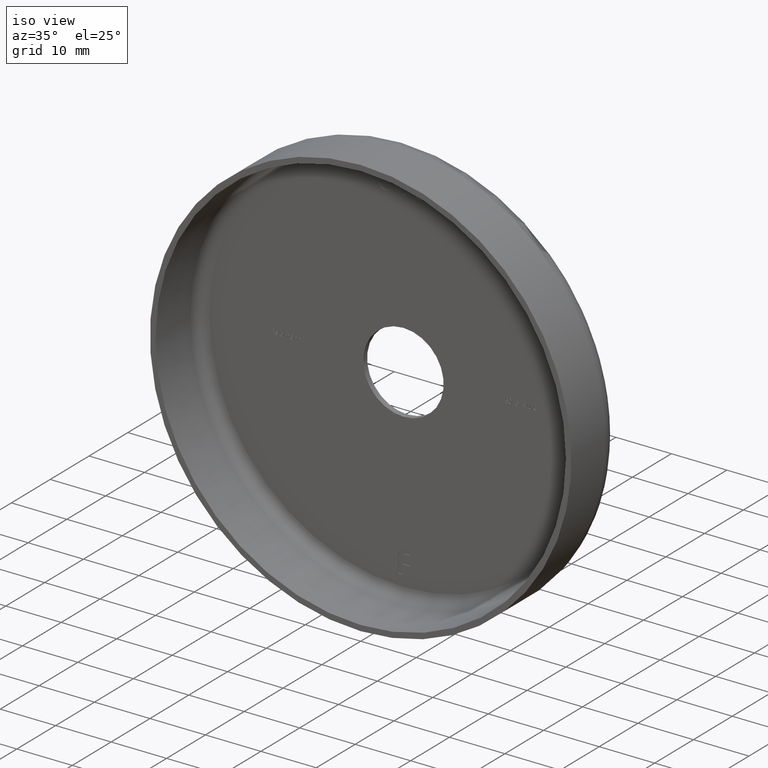
[diagram: clean part render]
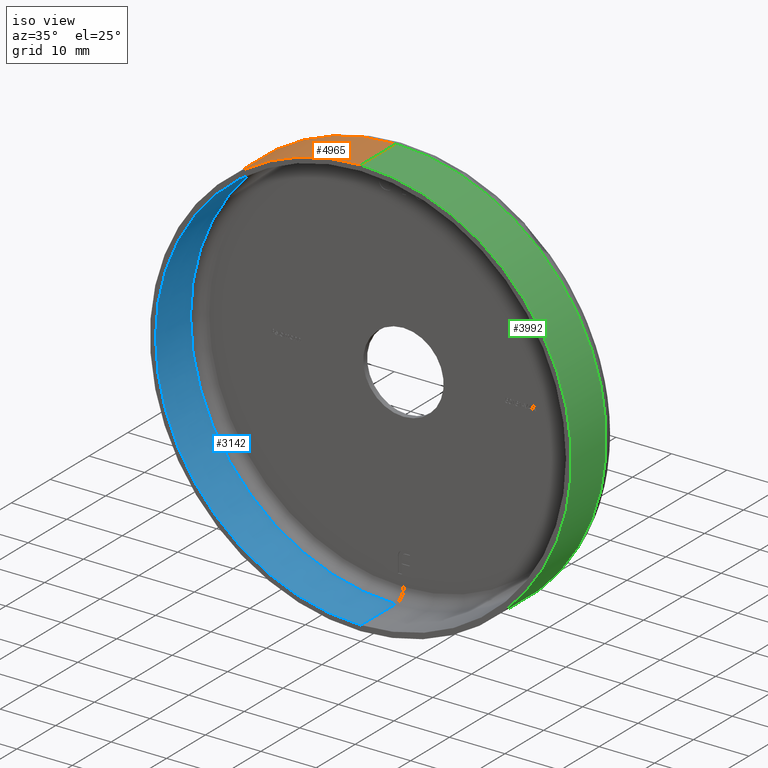
[diagram: same view with three faces highlighted in distinct colors, each labeled with its STEP entity id]
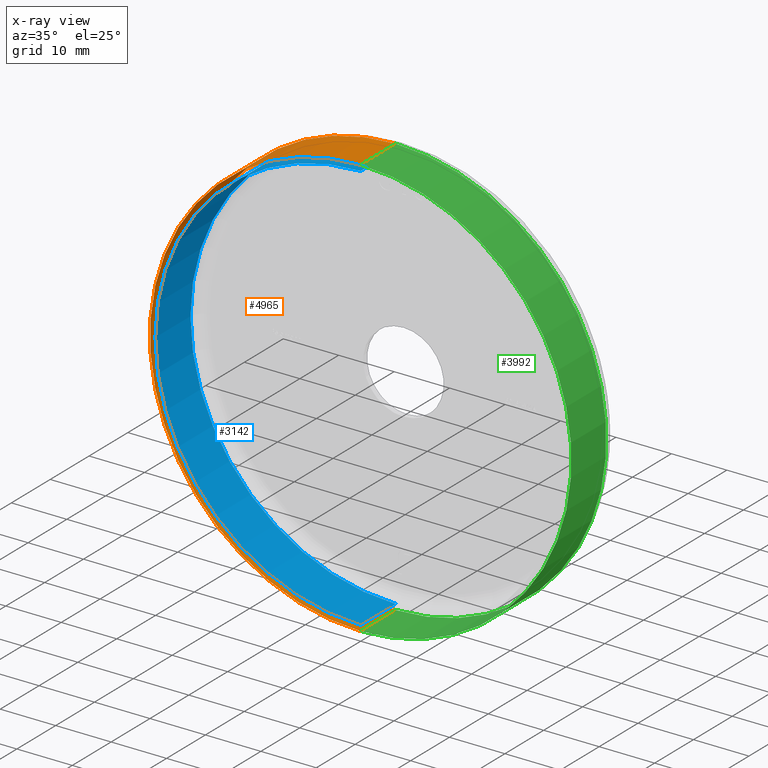
[diagram: x-ray of the same camera — body ghosted, the three highlighted faces saturated]
A machine part, iso view with three faces highlighted in distinct colors.
The next image is the same camera in x-ray (body ghosted, the three faces saturated) — at least one of them is partly hidden behind the body in this view.
Their STEP definitions:

[orange] entity #4965 — the highlighted cylindrical surface (partial cylindrical patch) has radius 38 mm, axis along (-0, -1, -0).
#78 = CARTESIAN_POINT ( 'NONE',  ( 0.000000000000000000, 0.000000000000000000, 0.000000000000000000 ) ) ;
#534 = CIRCLE ( 'NONE', #8892, 38.00000000000000711 ) ;
#720 = VERTEX_POINT ( 'NONE', #7881 ) ;
#789 = DIRECTION ( 'NONE',  ( -0.000000000000000000, -1.000000000000000000, -0.000000000000000000 ) ) ;
#934 = VECTOR ( 'NONE', #9696, 1000.000000000000000 ) ;
#1474 = AXIS2_PLACEMENT_3D ( 'NONE', #78, #2290, #3384 ) ;
#1537 = EDGE_CURVE ( 'NONE', #1704, #720, #534, .T. ) ;
#1704 = VERTEX_POINT ( 'NONE', #11798 ) ;
#1938 = VECTOR ( 'NONE', #4731, 1000.000000000000000 ) ;
#2086 = LINE ( 'NONE', #3672, #1938 ) ;
#2290 = DIRECTION ( 'NONE',  ( -0.000000000000000000, -1.000000000000000000, -0.000000000000000000 ) ) ;
#3384 = DIRECTION ( 'NONE',  ( 0.000000000000000000, 0.000000000000000000, -1.000000000000000000 ) ) ;
#3449 = CARTESIAN_POINT ( 'NONE',  ( 4.653657836759942730E-15, 0.000000000000000000, 38.00000000000000711 ) ) ;
#3672 = CARTESIAN_POINT ( 'NONE',  ( 0.000000000000000000, 0.000000000000000000, -38.00000000000000711 ) ) ;
#4058 = VERTEX_POINT ( 'NONE', #5270 ) ;
#4264 = ORIENTED_EDGE ( 'NONE', *, *, #12024, .F. ) ;
#4624 = EDGE_CURVE ( 'NONE', #720, #4058, #2086, .T. ) ;
#4731 = DIRECTION ( 'NONE',  ( -0.000000000000000000, -1.000000000000000000, -0.000000000000000000 ) ) ;
#4906 = FACE_OUTER_BOUND ( 'NONE', #9581, .T. ) ;
#4965 = ADVANCED_FACE ( 'NONE', ( #4906 ), #11099, .T. ) ;
#5270 = CARTESIAN_POINT ( 'NONE',  ( 0.000000000000000000, 0.000000000000000000, -38.00000000000000711 ) ) ;
#5931 = CIRCLE ( 'NONE', #8930, 38.00000000000000711 ) ;
#6149 = DIRECTION ( 'NONE',  ( -0.000000000000000000, -1.000000000000000000, -0.000000000000000000 ) ) ;
#7176 = EDGE_CURVE ( 'NONE', #1704, #9016, #7279, .T. ) ;
#7279 = LINE ( 'NONE', #9888, #934 ) ;
#7314 = DIRECTION ( 'NONE',  ( 0.000000000000000000, 0.000000000000000000, -1.000000000000000000 ) ) ;
#7881 = CARTESIAN_POINT ( 'NONE',  ( 0.000000000000000000, 9.000000000000001776, -38.00000000000000711 ) ) ;
#8232 = ORIENTED_EDGE ( 'NONE', *, *, #7176, .F. ) ;
#8892 = AXIS2_PLACEMENT_3D ( 'NONE', #12402, #6149, #7314 ) ;
#8930 = AXIS2_PLACEMENT_3D ( 'NONE', #11201, #789, #13256 ) ;
#9016 = VERTEX_POINT ( 'NONE', #3449 ) ;
#9581 = EDGE_LOOP ( 'NONE', ( #8232, #10177, #10146, #4264 ) ) ;
#9696 = DIRECTION ( 'NONE',  ( -0.000000000000000000, -1.000000000000000000, -0.000000000000000000 ) ) ;
#9888 = CARTESIAN_POINT ( 'NONE',  ( 4.653657836759942730E-15, 0.000000000000000000, 38.00000000000000711 ) ) ;
#10146 = ORIENTED_EDGE ( 'NONE', *, *, #4624, .T. ) ;
#10177 = ORIENTED_EDGE ( 'NONE', *, *, #1537, .T. ) ;
#11099 = CYLINDRICAL_SURFACE ( 'NONE', #1474, 38.00000000000000711 ) ;
#11201 = CARTESIAN_POINT ( 'NONE',  ( 0.000000000000000000, 0.000000000000000000, 0.000000000000000000 ) ) ;
#11798 = CARTESIAN_POINT ( 'NONE',  ( 4.653657836759942730E-15, 9.000000000000001776, 38.00000000000000711 ) ) ;
#12024 = EDGE_CURVE ( 'NONE', #9016, #4058, #5931, .T. ) ;
#12402 = CARTESIAN_POINT ( 'NONE',  ( 0.000000000000000000, 9.000000000000001776, 0.000000000000000000 ) ) ;
#13256 = DIRECTION ( 'NONE',  ( 0.000000000000000000, 0.000000000000000000, -1.000000000000000000 ) ) ;

[blue] entity #3142 — the highlighted cylindrical surface (partial cylindrical patch) has radius 37 mm, axis along (-0, -1, -0).
#269 = DIRECTION ( 'NONE',  ( -0.000000000000000000, -1.000000000000000000, -0.000000000000000000 ) ) ;
#577 = EDGE_CURVE ( 'NONE', #6753, #8883, #6570, .T. ) ;
#829 = CARTESIAN_POINT ( 'NONE',  ( 0.000000000000000000, -1.224646799147353207E-16, -37.00000000000000711 ) ) ;
#1278 = CARTESIAN_POINT ( 'NONE',  ( 0.000000000000000000, 9.000000000000001776, 0.000000000000000000 ) ) ;
#1426 = DIRECTION ( 'NONE',  ( -0.000000000000000000, -1.000000000000000000, -0.000000000000000000 ) ) ;
#1592 = CARTESIAN_POINT ( 'NONE',  ( 0.000000000000000000, 9.000000000000001776, -37.00000000000000711 ) ) ;
#1870 = DIRECTION ( 'NONE',  ( -0.000000000000000000, -1.000000000000000000, -0.000000000000000000 ) ) ;
#2225 = AXIS2_PLACEMENT_3D ( 'NONE', #12923, #1426, #3519 ) ;
#3066 = CIRCLE ( 'NONE', #9950, 37.00000000000000711 ) ;
#3142 = ADVANCED_FACE ( 'NONE', ( #5415 ), #8853, .F. ) ;
#3511 = ORIENTED_EDGE ( 'NONE', *, *, #11575, .T. ) ;
#3519 = DIRECTION ( 'NONE',  ( 0.000000000000000000, 0.000000000000000000, -1.000000000000000000 ) ) ;
#4072 = CARTESIAN_POINT ( 'NONE',  ( 4.531193156845207581E-15, -1.224646799147353207E-16, 37.00000000000000711 ) ) ;
#4839 = CARTESIAN_POINT ( 'NONE',  ( 0.000000000000000000, -1.224646799147353207E-16, 0.000000000000000000 ) ) ;
#4919 = CARTESIAN_POINT ( 'NONE',  ( 4.531193156845207581E-15, 0.000000000000000000, 37.00000000000000711 ) ) ;
#4976 = DIRECTION ( 'NONE',  ( -0.000000000000000000, -1.000000000000000000, -0.000000000000000000 ) ) ;
#5206 = DIRECTION ( 'NONE',  ( -0.000000000000000000, -1.000000000000000000, -0.000000000000000000 ) ) ;
#5271 = VECTOR ( 'NONE', #5206, 1000.000000000000000 ) ;
#5335 = ORIENTED_EDGE ( 'NONE', *, *, #6420, .T. ) ;
#5415 = FACE_OUTER_BOUND ( 'NONE', #7766, .T. ) ;
#5891 = EDGE_CURVE ( 'NONE', #10431, #6753, #3066, .T. ) ;
#6420 = EDGE_CURVE ( 'NONE', #10431, #10272, #9769, .T. ) ;
#6570 = LINE ( 'NONE', #9266, #5271 ) ;
#6753 = VERTEX_POINT ( 'NONE', #1592 ) ;
#7560 = CIRCLE ( 'NONE', #11280, 37.00000000000000711 ) ;
#7766 = EDGE_LOOP ( 'NONE', ( #13314, #5335, #3511, #9550 ) ) ;
#8853 = CYLINDRICAL_SURFACE ( 'NONE', #2225, 37.00000000000000711 ) ;
#8883 = VERTEX_POINT ( 'NONE', #829 ) ;
#8906 = CARTESIAN_POINT ( 'NONE',  ( 4.531193156845207581E-15, 9.000000000000001776, 37.00000000000000711 ) ) ;
#9266 = CARTESIAN_POINT ( 'NONE',  ( 0.000000000000000000, 0.000000000000000000, -37.00000000000000711 ) ) ;
#9550 = ORIENTED_EDGE ( 'NONE', *, *, #577, .F. ) ;
#9769 = LINE ( 'NONE', #4919, #12213 ) ;
#9950 = AXIS2_PLACEMENT_3D ( 'NONE', #1278, #269, #11714 ) ;
#10272 = VERTEX_POINT ( 'NONE', #4072 ) ;
#10431 = VERTEX_POINT ( 'NONE', #8906 ) ;
#11280 = AXIS2_PLACEMENT_3D ( 'NONE', #4839, #4976, #12176 ) ;
#11575 = EDGE_CURVE ( 'NONE', #10272, #8883, #7560, .T. ) ;
#11714 = DIRECTION ( 'NONE',  ( 0.000000000000000000, 0.000000000000000000, -1.000000000000000000 ) ) ;
#12176 = DIRECTION ( 'NONE',  ( 0.000000000000000000, 0.000000000000000000, -1.000000000000000000 ) ) ;
#12213 = VECTOR ( 'NONE', #1870, 1000.000000000000000 ) ;
#12923 = CARTESIAN_POINT ( 'NONE',  ( 0.000000000000000000, 0.000000000000000000, 0.000000000000000000 ) ) ;
#13314 = ORIENTED_EDGE ( 'NONE', *, *, #5891, .F. ) ;

[green] entity #3992 — the highlighted cylindrical surface (partial cylindrical patch) has radius 38 mm, axis along (-0, -1, -0).
#480 = DIRECTION ( 'NONE',  ( 0.000000000000000000, 0.000000000000000000, -1.000000000000000000 ) ) ;
#720 = VERTEX_POINT ( 'NONE', #7881 ) ;
#934 = VECTOR ( 'NONE', #9696, 1000.000000000000000 ) ;
#1704 = VERTEX_POINT ( 'NONE', #11798 ) ;
#1938 = VECTOR ( 'NONE', #4731, 1000.000000000000000 ) ;
#2041 = AXIS2_PLACEMENT_3D ( 'NONE', #3057, #10326, #8180 ) ;
#2086 = LINE ( 'NONE', #3672, #1938 ) ;
#2456 = CYLINDRICAL_SURFACE ( 'NONE', #2041, 38.00000000000000711 ) ;
#3057 = CARTESIAN_POINT ( 'NONE',  ( 0.000000000000000000, 0.000000000000000000, 0.000000000000000000 ) ) ;
#3153 = DIRECTION ( 'NONE',  ( 0.000000000000000000, 0.000000000000000000, -1.000000000000000000 ) ) ;
#3449 = CARTESIAN_POINT ( 'NONE',  ( 4.653657836759942730E-15, 0.000000000000000000, 38.00000000000000711 ) ) ;
#3672 = CARTESIAN_POINT ( 'NONE',  ( 0.000000000000000000, 0.000000000000000000, -38.00000000000000711 ) ) ;
#3730 = ORIENTED_EDGE ( 'NONE', *, *, #7176, .T. ) ;
#3992 = ADVANCED_FACE ( 'NONE', ( #9010 ), #2456, .T. ) ;
#4058 = VERTEX_POINT ( 'NONE', #5270 ) ;
#4076 = ORIENTED_EDGE ( 'NONE', *, *, #4624, .F. ) ;
#4209 = AXIS2_PLACEMENT_3D ( 'NONE', #6774, #10875, #480 ) ;
#4624 = EDGE_CURVE ( 'NONE', #720, #4058, #2086, .T. ) ;
#4731 = DIRECTION ( 'NONE',  ( -0.000000000000000000, -1.000000000000000000, -0.000000000000000000 ) ) ;
#4759 = ORIENTED_EDGE ( 'NONE', *, *, #11772, .T. ) ;
#4973 = CIRCLE ( 'NONE', #4209, 38.00000000000000711 ) ;
#5270 = CARTESIAN_POINT ( 'NONE',  ( 0.000000000000000000, 0.000000000000000000, -38.00000000000000711 ) ) ;
#6774 = CARTESIAN_POINT ( 'NONE',  ( 0.000000000000000000, 0.000000000000000000, 0.000000000000000000 ) ) ;
#7141 = ORIENTED_EDGE ( 'NONE', *, *, #12945, .F. ) ;
#7176 = EDGE_CURVE ( 'NONE', #1704, #9016, #7279, .T. ) ;
#7279 = LINE ( 'NONE', #9888, #934 ) ;
#7352 = CARTESIAN_POINT ( 'NONE',  ( 0.000000000000000000, 9.000000000000001776, 0.000000000000000000 ) ) ;
#7881 = CARTESIAN_POINT ( 'NONE',  ( 0.000000000000000000, 9.000000000000001776, -38.00000000000000711 ) ) ;
#8180 = DIRECTION ( 'NONE',  ( 0.000000000000000000, 0.000000000000000000, -1.000000000000000000 ) ) ;
#9010 = FACE_OUTER_BOUND ( 'NONE', #9705, .T. ) ;
#9016 = VERTEX_POINT ( 'NONE', #3449 ) ;
#9618 = AXIS2_PLACEMENT_3D ( 'NONE', #7352, #11520, #3153 ) ;
#9696 = DIRECTION ( 'NONE',  ( -0.000000000000000000, -1.000000000000000000, -0.000000000000000000 ) ) ;
#9705 = EDGE_LOOP ( 'NONE', ( #4759, #3730, #7141, #4076 ) ) ;
#9888 = CARTESIAN_POINT ( 'NONE',  ( 4.653657836759942730E-15, 0.000000000000000000, 38.00000000000000711 ) ) ;
#10326 = DIRECTION ( 'NONE',  ( -0.000000000000000000, -1.000000000000000000, -0.000000000000000000 ) ) ;
#10875 = DIRECTION ( 'NONE',  ( -0.000000000000000000, -1.000000000000000000, -0.000000000000000000 ) ) ;
#11329 = CIRCLE ( 'NONE', #9618, 38.00000000000000711 ) ;
#11520 = DIRECTION ( 'NONE',  ( -0.000000000000000000, -1.000000000000000000, -0.000000000000000000 ) ) ;
#11772 = EDGE_CURVE ( 'NONE', #720, #1704, #11329, .T. ) ;
#11798 = CARTESIAN_POINT ( 'NONE',  ( 4.653657836759942730E-15, 9.000000000000001776, 38.00000000000000711 ) ) ;
#12945 = EDGE_CURVE ( 'NONE', #4058, #9016, #4973, .T. ) ;